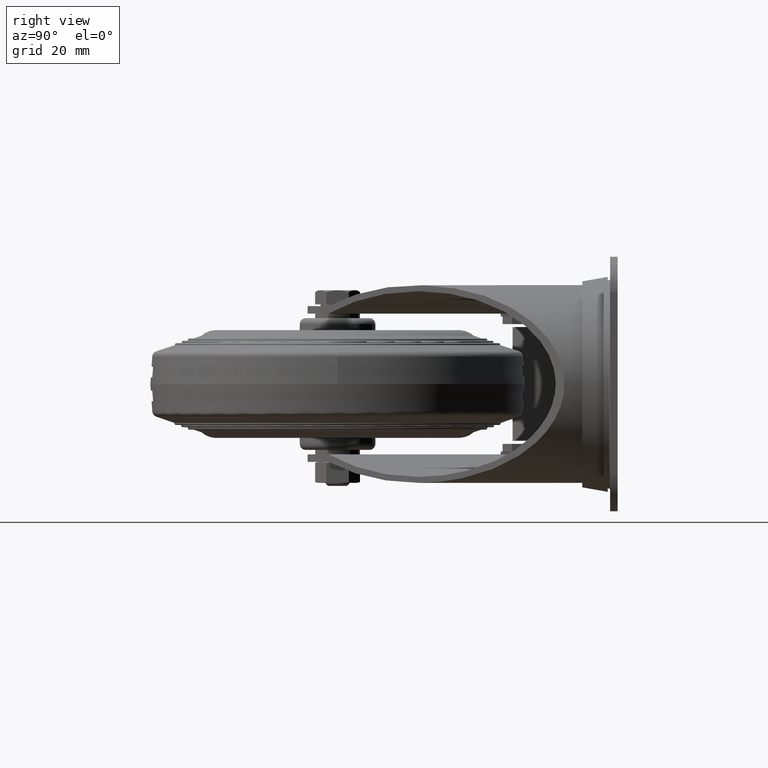
[diagram: clean part render]
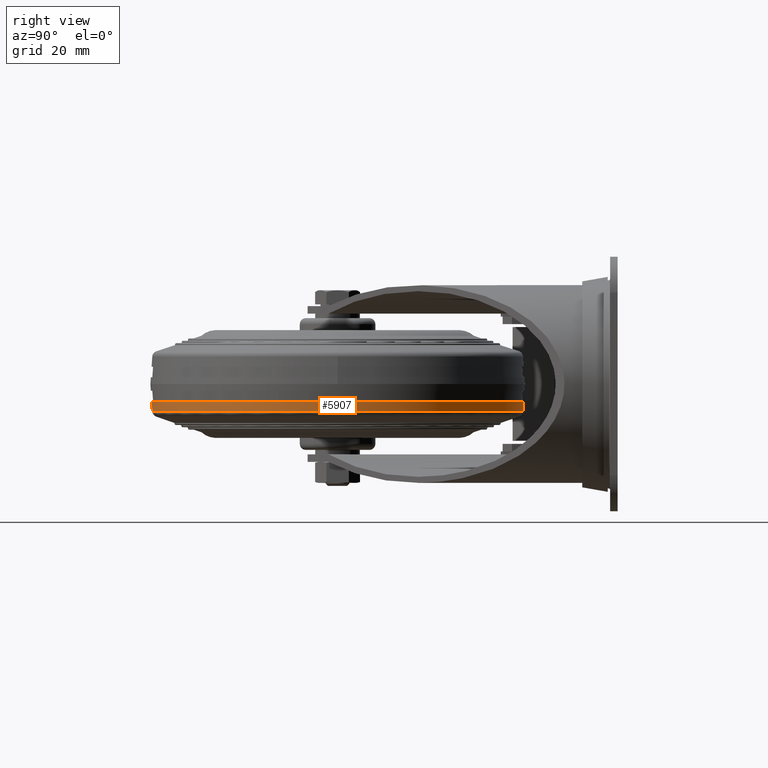
[diagram: same view with one face highlighted and labeled with its STEP entity id]
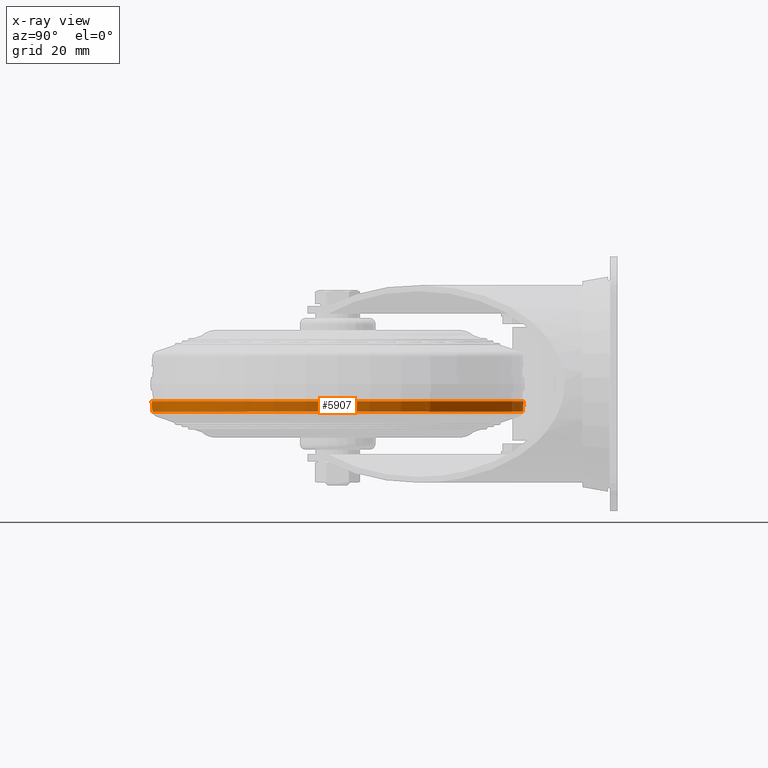
[diagram: x-ray of the same camera — body ghosted, the highlighted face saturated]
A machine part, right view. The second image highlights one B-rep face of the part: STEP entity #5907.
The next image is the same camera in x-ray: the body ghosted, the highlighted face saturated — about 0% of this face is hidden behind the body in this view.
In plain terms, the highlighted conical surface has half-angle 4 deg.
Its self-contained STEP definition (entity closure, byte-faithful):
#82=CONICAL_SURFACE('',#6335,62.0979208313,0.0698131701);
#325=CIRCLE('',#6333,61.8579082945);
#327=CIRCLE('',#6336,62.0979208313);
#564=FACE_OUTER_BOUND('',#918,.T.);
#918=EDGE_LOOP('',(#3879,#3880,#3881,#3882));
#1311=LINE('',#8852,#1838);
#1838=VECTOR('',#7109,62.0979208313);
#2398=VERTEX_POINT('',#8846);
#2399=VERTEX_POINT('',#8850);
#2971=EDGE_CURVE('',#2398,#2398,#325,.T.);
#2973=EDGE_CURVE('',#2399,#2399,#327,.T.);
#2974=EDGE_CURVE('',#2399,#2398,#1311,.T.);
#3879=ORIENTED_EDGE('',*,*,#2973,.F.);
#3880=ORIENTED_EDGE('',*,*,#2974,.T.);
#3881=ORIENTED_EDGE('',*,*,#2971,.T.);
#3882=ORIENTED_EDGE('',*,*,#2974,.F.);
#5907=ADVANCED_FACE('',(#564),#82,.T.);
#6333=AXIS2_PLACEMENT_3D('',#8847,#7101,#7102);
#6335=AXIS2_PLACEMENT_3D('',#8849,#7105,#7106);
#6336=AXIS2_PLACEMENT_3D('',#8851,#7107,#7108);
#7101=DIRECTION('center_axis',(0.,0.,1.));
#7102=DIRECTION('ref_axis',(1.,0.,0.));
#7105=DIRECTION('center_axis',(0.,0.,1.));
#7106=DIRECTION('ref_axis',(1.,0.,0.));
#7107=DIRECTION('center_axis',(0.,0.,1.));
#7108=DIRECTION('ref_axis',(1.,0.,0.));
#7109=DIRECTION('',(0.0697564737643028,8.54270423152598E-18,-0.997564050258413));
#8846=CARTESIAN_POINT('',(-61.8579082945,-7.57540893948099E-15,-9.1823391866439));
#8847=CARTESIAN_POINT('Origin',(0.,0.,-9.1823391866439));
#8849=CARTESIAN_POINT('Origin',(0.,0.,-5.75));
#8850=CARTESIAN_POINT('',(-62.0979208313,-7.60480199797573E-15,-5.75));
#8851=CARTESIAN_POINT('Origin',(0.,0.,-5.75));
#8852=CARTESIAN_POINT('',(-62.0979208313,-7.60480199797573E-15,-5.75));